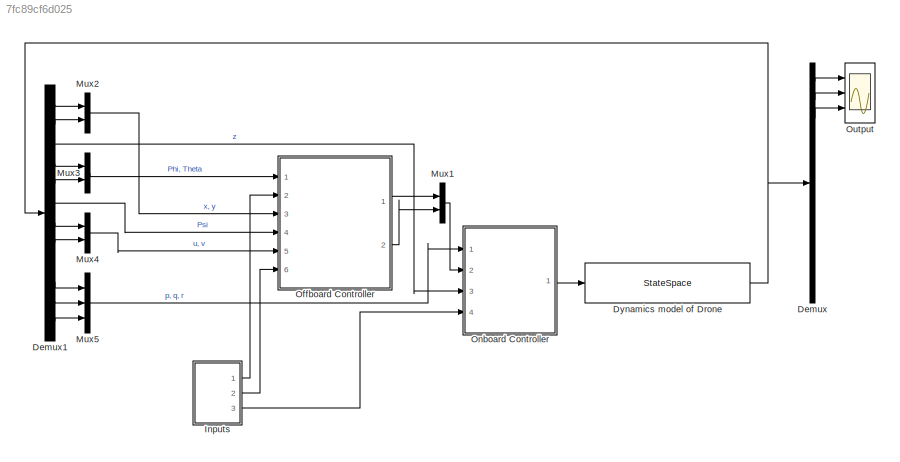
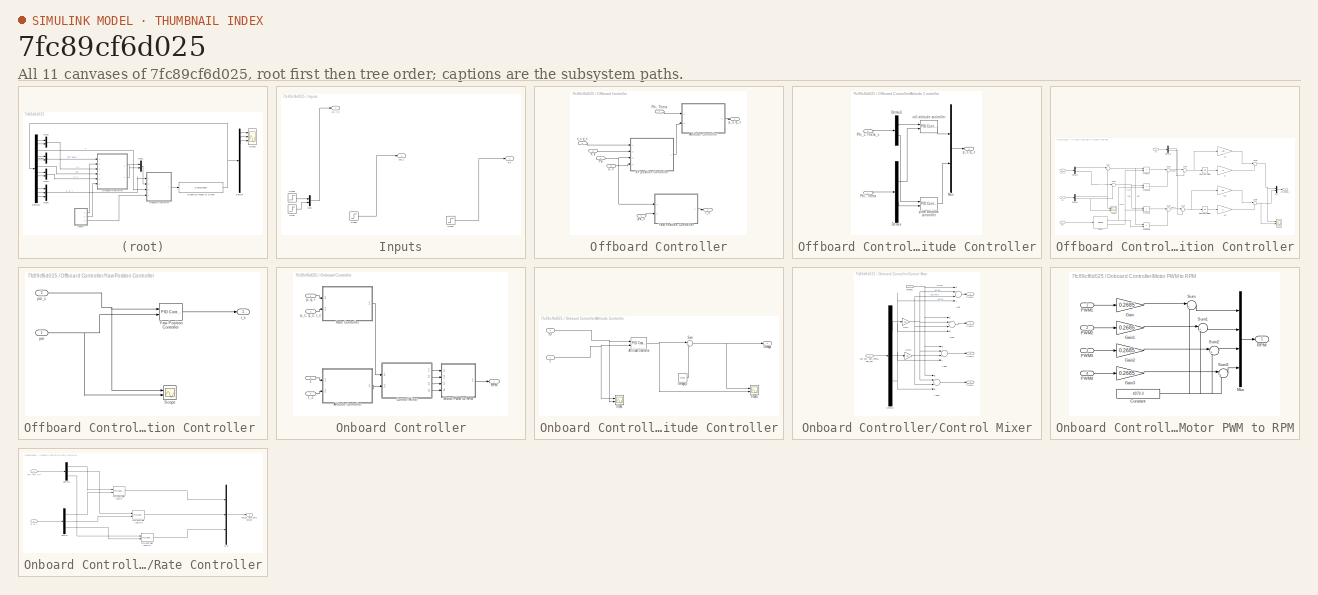
[diagram: thumbnail index - all 11 canvases of the model, root first then tree order]
MODEL slx_7fc89cf6d025
KIND model
CONFIG AbsTol = auto
CONFIG EnableMultiTasking = off
CONFIG FixedStep = 0.1
CONFIG MaxStep = auto
CONFIG MinStep = auto
CONFIG RelTol = auto
CONFIG SampleTimeConstraint = Unconstrained
CONFIG Solver = ode15s
CONFIG SolverName = ode15s
CONFIG StartTime = 0.0
CONFIG StopTime = 50
WORKSPACE source: MAT-file member
WORKSPACE A_matrix = [0 0 0 0 0 0 0 0 0 0 0 0 ... (144 elements, 12x12)]
BLOCK [Demux] Demux
  DisplayOption = bar
  Outputs = 12
  Ports = [1, 12]
BLOCK [Demux] Demux1
  DisplayOption = bar
  Outputs = 12
  Ports = [1, 12]
BLOCK [StateSpace] Dynamics model of Drone
  A = A
  B = B
  C = C
  ContinuousStateAttributes = 'X.Y.Z.Roll.PItch.Yaw.U.V.W.Roll_Rate.Pitch_Rate.Yaw_Rate'
  D = D
  InitialCondition = [0,0,0,0,0,0,0,0,0,0,0,0]
  Ports = [1, 1]
BLOCK [SubSystem] Inputs
  Ports = [0, 3]
  RequestExecContextInheritance = off
BLOCK [Mux] Inputs/Mux
  DisplayOption = bar
  Inputs = 2
  Ports = [2, 1]
BLOCK [Step] Inputs/Step
  After = 0.3
  SampleTime = 0
BLOCK [Step] Inputs/Step1
  After = 0.3
  SampleTime = 0
BLOCK [Step] Inputs/Step2
  After = 0.3
  SampleTime = 0
BLOCK [Step] Inputs/Step3
  After = 0
  SampleTime = 0
BLOCK [Outport] Inputs/psi_c
  IconDisplay = Port number
  Port = 2
BLOCK [Outport] Inputs/x_c, y_c
  IconDisplay = Port number
BLOCK [Outport] Inputs/z_c
  IconDisplay = Port number
  Port = 3
BLOCK [Mux] Mux1
  DisplayOption = bar
  Inputs = 2
  Ports = [2, 1]
BLOCK [Mux] Mux2
  DisplayOption = bar
  Inputs = 2
  Ports = [2, 1]
BLOCK [Mux] Mux3
  DisplayOption = bar
  Inputs = 2
  Ports = [2, 1]
BLOCK [Mux] Mux4
  DisplayOption = bar
  Inputs = 2
  Ports = [2, 1]
BLOCK [Mux] Mux5
  DisplayOption = bar
  Inputs = 3
  Ports = [3, 1]
BLOCK [SubSystem] Offboard Controller
  Ports = [6, 2]
  RequestExecContextInheritance = off
  ShowPortLabels = FromPortBlockName
BLOCK [SubSystem] Offboard Controller/Attitude Controller
  Ports = [2, 1]
  RequestExecContextInheritance = off
BLOCK [Demux] Offboard Controller/Attitude Controller/Demux
  DisplayOption = bar
  Outputs = 2
  Ports = [1, 2]
BLOCK [Demux] Offboard Controller/Attitude Controller/Demux1
  DisplayOption = bar
  Outputs = 2
  Ports = [1, 2]
BLOCK [Mux] Offboard Controller/Attitude Controller/Mux
  DisplayOption = bar
  Inputs = 2
  Ports = [2, 1]
BLOCK [Inport] Offboard Controller/Attitude Controller/Phi, Theta
  IconDisplay = Port number
BLOCK [Inport] Offboard Controller/Attitude Controller/Phi_c, Theta_c
  IconDisplay = Port number
  Port = 2
BLOCK [Outport] Offboard Controller/Attitude Controller/p_c, q_c
  IconDisplay = Port number
  VectorParamsAs1DForOutWhenUnconnected = off
BLOCK [Reference] Offboard Controller/Attitude Controller/pitch attitude controller  REF=simulink/Continuous/PID Controller (2DOF)
  Ports = [2, 1]
  SourceBlock = simulink/Continuous/PID Controller (2DOF)
  SourceProductBaseCode = SL
  SourceProductName = Simulink
  SourceType = PID 2dof
BLOCK [Reference] Offboard Controller/Attitude Controller/roll attitude controller  REF=simulink/Continuous/PID Controller (2DOF)
  Ports = [2, 1]
  SourceBlock = simulink/Continuous/PID Controller (2DOF)
  SourceProductBaseCode = SL
  SourceProductName = Simulink
  SourceType = PID 2dof
BLOCK [Inport] Offboard Controller/Phi, Theta
  IconDisplay = Port number
BLOCK [Inport] Offboard Controller/Psi
  IconDisplay = Port number
  Port = 4
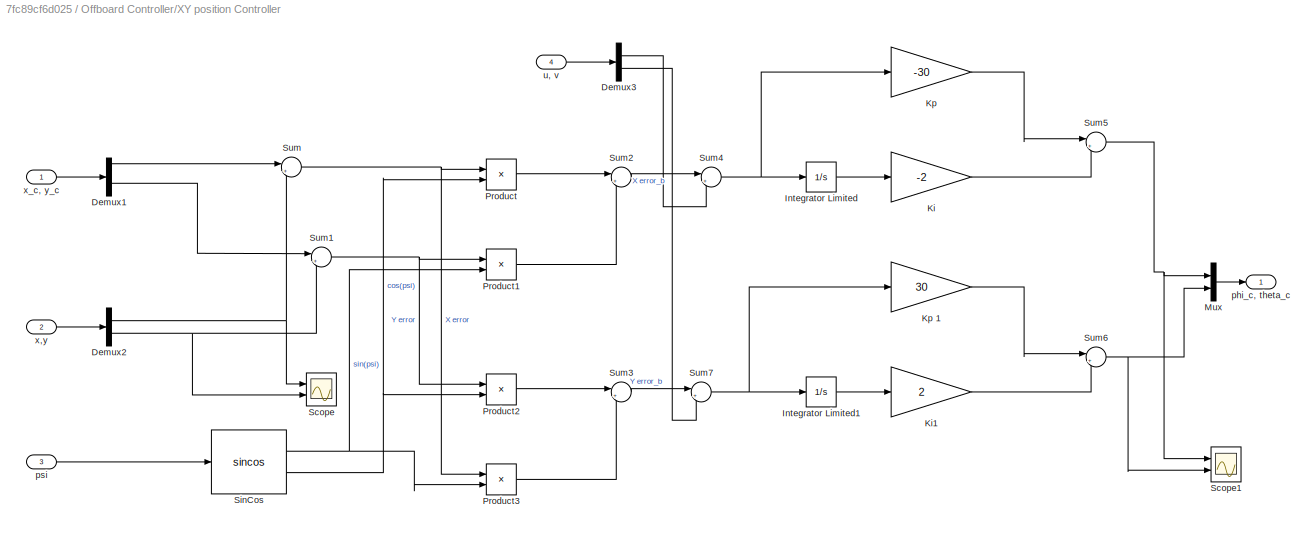
BLOCK [SubSystem] Offboard Controller/XY position Controller
  Ports = [4, 1]
  RequestExecContextInheritance = off
BLOCK [Demux] Offboard Controller/XY position Controller/Demux1
  DisplayOption = bar
  Outputs = 2
  Ports = [1, 2]
BLOCK [Demux] Offboard Controller/XY position Controller/Demux2
  DisplayOption = bar
  Outputs = 2
  Ports = [1, 2]
BLOCK [Demux] Offboard Controller/XY position Controller/Demux3
  DisplayOption = bar
  Outputs = 2
  Ports = [1, 2]
BLOCK [Integrator] Offboard Controller/XY position Controller/Integrator Limited
  LimitOutput = on
  LowerSaturationLimit = -pi/6
  Ports = [1, 1]
  UpperSaturationLimit = pi/6
BLOCK [Integrator] Offboard Controller/XY position Controller/Integrator Limited1
  LimitOutput = on
  LowerSaturationLimit = -pi/6
  Ports = [1, 1]
  UpperSaturationLimit = pi/6
BLOCK [Gain] Offboard Controller/XY position Controller/Ki
  Gain = -2
  OutDataTypeStr = Inherit: Inherit via internal rule
  ParamDataTypeStr = Inherit: Inherit via internal rule
  SaturateOnIntegerOverflow = off
BLOCK [Gain] Offboard Controller/XY position Controller/Ki1
  Gain = 2
  OutDataTypeStr = Inherit: Inherit via internal rule
  ParamDataTypeStr = Inherit: Inherit via internal rule
  SaturateOnIntegerOverflow = off
BLOCK [Gain] Offboard Controller/XY position Controller/Kp 
  Gain = -30
  OutDataTypeStr = Inherit: Inherit via internal rule
  ParamDataTypeStr = Inherit: Inherit via internal rule
  SaturateOnIntegerOverflow = off
BLOCK [Gain] Offboard Controller/XY position Controller/Kp 1
  Gain = 30
  OutDataTypeStr = Inherit: Inherit via internal rule
  ParamDataTypeStr = Inherit: Inherit via internal rule
  SaturateOnIntegerOverflow = off
BLOCK [Mux] Offboard Controller/XY position Controller/Mux
  DisplayOption = bar
  Inputs = 2
  Ports = [2, 1]
BLOCK [Product] Offboard Controller/XY position Controller/Product
  InputSameDT = off
  OutDataTypeStr = Inherit: Inherit via internal rule
  Ports = [2, 1]
  RndMeth = Floor
  SaturateOnIntegerOverflow = off
BLOCK [Product] Offboard Controller/XY position Controller/Product1
  InputSameDT = off
  OutDataTypeStr = Inherit: Inherit via internal rule
  Ports = [2, 1]
  RndMeth = Floor
  SaturateOnIntegerOverflow = off
BLOCK [Product] Offboard Controller/XY position Controller/Product2
  InputSameDT = off
  OutDataTypeStr = Inherit: Inherit via internal rule
  Ports = [2, 1]
  RndMeth = Floor
  SaturateOnIntegerOverflow = off
BLOCK [Product] Offboard Controller/XY position Controller/Product3
  InputSameDT = off
  OutDataTypeStr = Inherit: Inherit via internal rule
  Ports = [2, 1]
  RndMeth = Floor
  SaturateOnIntegerOverflow = off
BLOCK [Scope] Offboard Controller/XY position Controller/Scope
  Floating = off
  NumInputPorts = 2
  Ports = [2]
  ScopeSpecificationString = Simulink.scopes.TimeScopeBlockCfg('CurrentConfiguration', extmgr.ConfigurationSet(extmgr.Configuration('Core','General UI',true),extmgr.Configuration('Core','Source UI',true),extmgr.Configuration('Sources','WiredSimulink',true,'DataLoggingVariableName','ScopeData5'),extmgr.Configuration('Visuals','Time Domain',true,'SerializedDisplays',{struct('MinYLimReal','-15.81523','MaxYLimReal','6.20722','YLa...<+1697ch>
BLOCK [Scope] Offboard Controller/XY position Controller/Scope1
  Floating = off
  NumInputPorts = 2
  Ports = [2]
  ScopeSpecificationString = Simulink.scopes.TimeScopeBlockCfg('CurrentConfiguration', extmgr.ConfigurationSet(extmgr.Configuration('Core','General UI',true),extmgr.Configuration('Core','Source UI',true),extmgr.Configuration('Sources','WiredSimulink',true,'DataLoggingVariableName','ScopeData6'),extmgr.Configuration('Visuals','Time Domain',true,'SerializedDisplays',{struct('MinYLimReal','-32.77875','MaxYLimReal','5.72296','YLa...<+1689ch>
BLOCK [Trigonometry] Offboard Controller/XY position Controller/SinCos
  Operator = sincos
  Ports = [1, 2]
BLOCK [Sum] Offboard Controller/XY position Controller/Sum
  IconShape = round
  InputSameDT = off
  Inputs = |+-
  OutDataTypeStr = Inherit: Inherit via internal rule
  Ports = [2, 1]
  SaturateOnIntegerOverflow = off
BLOCK [Sum] Offboard Controller/XY position Controller/Sum1
  IconShape = round
  InputSameDT = off
  Inputs = |+-
  OutDataTypeStr = Inherit: Inherit via internal rule
  Ports = [2, 1]
  SaturateOnIntegerOverflow = off
BLOCK [Sum] Offboard Controller/XY position Controller/Sum2
  IconShape = round
  InputSameDT = off
  Inputs = |++
  OutDataTypeStr = Inherit: Inherit via internal rule
  Ports = [2, 1]
  SaturateOnIntegerOverflow = off
BLOCK [Sum] Offboard Controller/XY position Controller/Sum3
  IconShape = round
  InputSameDT = off
  Inputs = |+-
  OutDataTypeStr = Inherit: Inherit via internal rule
  Ports = [2, 1]
  SaturateOnIntegerOverflow = off
BLOCK [Sum] Offboard Controller/XY position Controller/Sum4
  IconShape = round
  InputSameDT = off
  Inputs = |+-
  OutDataTypeStr = Inherit: Inherit via internal rule
  Ports = [2, 1]
  SaturateOnIntegerOverflow = off
BLOCK [Sum] Offboard Controller/XY position Controller/Sum5
  IconShape = round
  InputSameDT = off
  Inputs = |++
  OutDataTypeStr = Inherit: Inherit via internal rule
  Ports = [2, 1]
  SaturateOnIntegerOverflow = off
BLOCK [Sum] Offboard Controller/XY position Controller/Sum6
  IconShape = round
  InputSameDT = off
  Inputs = |++
  OutDataTypeStr = Inherit: Inherit via internal rule
  Ports = [2, 1]
  SaturateOnIntegerOverflow = off
BLOCK [Sum] Offboard Controller/XY position Controller/Sum7
  IconShape = round
  InputSameDT = off
  Inputs = |+-
  OutDataTypeStr = Inherit: Inherit via internal rule
  Ports = [2, 1]
  SaturateOnIntegerOverflow = off
BLOCK [Outport] Offboard Controller/XY position Controller/phi_c, theta_c
  IconDisplay = Port number
  VectorParamsAs1DForOutWhenUnconnected = off
BLOCK [Inport] Offboard Controller/XY position Controller/psi
  IconDisplay = Port number
  Port = 3
BLOCK [Inport] Offboard Controller/XY position Controller/u, v
  IconDisplay = Port number
  Port = 4
BLOCK [Inport] Offboard Controller/XY position Controller/x,y
  IconDisplay = Port number
  Port = 2
BLOCK [Inport] Offboard Controller/XY position Controller/x_c, y_c
  IconDisplay = Port number
BLOCK [SubSystem] Offboard Controller/Yaw Position Controller 
  Ports = [2, 1]
  RequestExecContextInheritance = off
BLOCK [Scope] Offboard Controller/Yaw Position Controller /Scope
  Floating = off
  NumInputPorts = 2
  Ports = [2]
  ScopeSpecificationString = Simulink.scopes.TimeScopeBlockCfg('CurrentConfiguration', extmgr.ConfigurationSet(extmgr.Configuration('Core','General UI',true),extmgr.Configuration('Core','Source UI',true),extmgr.Configuration('Sources','WiredSimulink',true,'DataLoggingVariableName','ScopeData1'),extmgr.Configuration('Visuals','Time Domain',true,'SerializedDisplays',{struct('MinYLimReal','-1.00000','MaxYLimReal','1.00000','YLab...<+1424ch>
BLOCK [Reference] Offboard Controller/Yaw Position Controller /Yaw Position Controller  REF=simulink/Continuous/PID Controller (2DOF)
  Ports = [2, 1]
  SourceBlock = simulink/Continuous/PID Controller (2DOF)
  SourceProductBaseCode = SL
  SourceProductName = Simulink
  SourceType = PID 2dof
BLOCK [Inport] Offboard Controller/Yaw Position Controller /psi
  IconDisplay = Port number
BLOCK [Inport] Offboard Controller/Yaw Position Controller /psi_c
  IconDisplay = Port number
  Port = 2
BLOCK [Outport] Offboard Controller/Yaw Position Controller /r_c
  IconDisplay = Port number
  VectorParamsAs1DForOutWhenUnconnected = off
BLOCK [Outport] Offboard Controller/p_c, q_c
  IconDisplay = Port number
BLOCK [Inport] Offboard Controller/psi_c
  IconDisplay = Port number
  Port = 6
BLOCK [Outport] Offboard Controller/r_c
  IconDisplay = Port number
  Port = 2
BLOCK [Inport] Offboard Controller/u, v 
  IconDisplay = Port number
  Port = 5
BLOCK [Inport] Offboard Controller/x, y 
  IconDisplay = Port number
  Port = 3
BLOCK [Inport] Offboard Controller/x_c, y_c
  IconDisplay = Port number
  Port = 2
BLOCK [SubSystem] Onboard Controller
  Ports = [4, 1]
  RequestExecContextInheritance = off
BLOCK [SubSystem] Onboard Controller/Altitude Controller
  Ports = [2, 1]
  RequestExecContextInheritance = off
BLOCK [Reference] Onboard Controller/Altitude Controller/Altitude Controller  REF=simulink/Continuous/PID Controller (2DOF)
  Ports = [2, 1]
  SourceBlock = simulink/Continuous/PID Controller (2DOF)
  SourceProductBaseCode = SL
  SourceProductName = Simulink
  SourceType = PID 2dof
BLOCK [Outport] Onboard Controller/Altitude Controller/Omega
  IconDisplay = Port number
  VectorParamsAs1DForOutWhenUnconnected = off
BLOCK [Constant] Onboard Controller/Altitude Controller/Omega_e
  Value = 44705
BLOCK [Scope] Onboard Controller/Altitude Controller/Scope
  Floating = off
  NumInputPorts = 2
  Ports = [2]
  ScopeSpecificationString = Simulink.scopes.TimeScopeBlockCfg('CurrentConfiguration', extmgr.ConfigurationSet(extmgr.Configuration('Core','General UI',true),extmgr.Configuration('Core','Source UI',true),extmgr.Configuration('Sources','WiredSimulink',true,'DataLoggingVariableName','ScopeData2'),extmgr.Configuration('Visuals','Time Domain',true,'SerializedDisplays',{struct('MinYLimReal','-151.30448','MaxYLimReal','1361.7403','...<+1380ch>
BLOCK [Scope] Onboard Controller/Altitude Controller/Scope1
  Floating = off
  NumInputPorts = 2
  Ports = [2]
  ScopeSpecificationString = Simulink.scopes.TimeScopeBlockCfg('CurrentConfiguration', extmgr.ConfigurationSet(extmgr.Configuration('Core','General UI',true),extmgr.Configuration('Core','Source UI',true),extmgr.Configuration('Sources','WiredSimulink',true,'DataLoggingVariableName','ScopeData3'),extmgr.Configuration('Visuals','Time Domain',true),extmgr.Configuration('Tools','Plot Navigation',true),extmgr.Configuration('Tools',...<+58ch>
BLOCK [Sum] Onboard Controller/Altitude Controller/Sum
  IconShape = round
  InputSameDT = off
  Inputs = |++
  OutDataTypeStr = Inherit: Inherit via internal rule
  Ports = [2, 1]
  SaturateOnIntegerOverflow = off
BLOCK [Inport] Onboard Controller/Altitude Controller/z
  IconDisplay = Port number
BLOCK [Inport] Onboard Controller/Altitude Controller/z_c
  IconDisplay = Port number
  Port = 2
BLOCK [SubSystem] Onboard Controller/Control Mixer
  Ports = [2, 4]
  RequestExecContextInheritance = off
BLOCK [Sum] Onboard Controller/Control Mixer/Add
  InputSameDT = off
  Inputs = +---
  OutDataTypeStr = Inherit: Inherit via internal rule
  Ports = [4, 1]
  SaturateOnIntegerOverflow = off
BLOCK [Sum] Onboard Controller/Control Mixer/Add4
  InputSameDT = off
  Inputs = ++-+
  OutDataTypeStr = Inherit: Inherit via internal rule
  Ports = [4, 1]
  SaturateOnIntegerOverflow = off
BLOCK [Sum] Onboard Controller/Control Mixer/Add5
  InputSameDT = off
  Inputs = +++-
  OutDataTypeStr = Inherit: Inherit via internal rule
  Ports = [4, 1]
  SaturateOnIntegerOverflow = off
BLOCK [Sum] Onboard Controller/Control Mixer/Add6
  InputSameDT = off
  Inputs = +--+
  OutDataTypeStr = Inherit: Inherit via internal rule
  Ports = [4, 1]
  SaturateOnIntegerOverflow = off
BLOCK [Demux] Onboard Controller/Control Mixer/Demux
  DisplayOption = bar
  Outputs = 3
  Ports = [1, 3]
BLOCK [Gain] Onboard Controller/Control Mixer/Gain
  Gain = 0.5
  OutDataTypeStr = Inherit: Inherit via internal rule
  ParamDataTypeStr = Inherit: Inherit via internal rule
  SaturateOnIntegerOverflow = off
BLOCK [Gain] Onboard Controller/Control Mixer/Gain1
  Gain = 0.5
  OutDataTypeStr = Inherit: Inherit via internal rule
  ParamDataTypeStr = Inherit: Inherit via internal rule
  SaturateOnIntegerOverflow = off
BLOCK [Outport] Onboard Controller/Control Mixer/PWM1 
  IconDisplay = Port number
  VectorParamsAs1DForOutWhenUnconnected = off
BLOCK [Outport] Onboard Controller/Control Mixer/PWM2 
  IconDisplay = Port number
  Port = 2
  VectorParamsAs1DForOutWhenUnconnected = off
BLOCK [Outport] Onboard Controller/Control Mixer/PWM3
  IconDisplay = Port number
  Port = 3
  VectorParamsAs1DForOutWhenUnconnected = off
BLOCK [Outport] Onboard Controller/Control Mixer/PWM4 
  IconDisplay = Port number
  Port = 4
  VectorParamsAs1DForOutWhenUnconnected = off
BLOCK [Inport] Onboard Controller/Control Mixer/del_phi, del_theta, del_psi
  IconDisplay = Port number
BLOCK [Inport] Onboard Controller/Control Mixer/omega 
  IconDisplay = Port number
  Port = 2
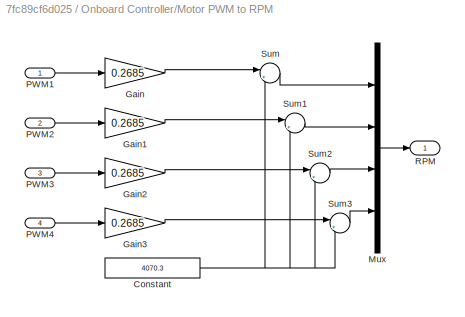
BLOCK [SubSystem] Onboard Controller/Motor PWM to RPM
  Ports = [4, 1]
  RequestExecContextInheritance = off
BLOCK [Constant] Onboard Controller/Motor PWM to RPM/Constant
  Value = 4070.3
BLOCK [Gain] Onboard Controller/Motor PWM to RPM/Gain
  Gain = 0.2685
  OutDataTypeStr = Inherit: Inherit via internal rule
  ParamDataTypeStr = Inherit: Inherit via internal rule
  SaturateOnIntegerOverflow = off
BLOCK [Gain] Onboard Controller/Motor PWM to RPM/Gain1
  Gain = 0.2685
  OutDataTypeStr = Inherit: Inherit via internal rule
  ParamDataTypeStr = Inherit: Inherit via internal rule
  SaturateOnIntegerOverflow = off
BLOCK [Gain] Onboard Controller/Motor PWM to RPM/Gain2
  Gain = 0.2685
  OutDataTypeStr = Inherit: Inherit via internal rule
  ParamDataTypeStr = Inherit: Inherit via internal rule
  SaturateOnIntegerOverflow = off
BLOCK [Gain] Onboard Controller/Motor PWM to RPM/Gain3
  Gain = 0.2685
  OutDataTypeStr = Inherit: Inherit via internal rule
  ParamDataTypeStr = Inherit: Inherit via internal rule
  SaturateOnIntegerOverflow = off
BLOCK [Mux] Onboard Controller/Motor PWM to RPM/Mux
  DisplayOption = bar
  Ports = [4, 1]
BLOCK [Inport] Onboard Controller/Motor PWM to RPM/PWM1
  IconDisplay = Port number
BLOCK [Inport] Onboard Controller/Motor PWM to RPM/PWM2
  IconDisplay = Port number
  Port = 2
BLOCK [Inport] Onboard Controller/Motor PWM to RPM/PWM3
  IconDisplay = Port number
  Port = 3
BLOCK [Inport] Onboard Controller/Motor PWM to RPM/PWM4 
  IconDisplay = Port number
  Port = 4
BLOCK [Outport] Onboard Controller/Motor PWM to RPM/RPM 
  IconDisplay = Port number
BLOCK [Sum] Onboard Controller/Motor PWM to RPM/Sum
  IconShape = round
  InputSameDT = off
  Inputs = |++
  OutDataTypeStr = Inherit: Inherit via internal rule
  Ports = [2, 1]
  SaturateOnIntegerOverflow = off
BLOCK [Sum] Onboard Controller/Motor PWM to RPM/Sum1
  IconShape = round
  InputSameDT = off
  Inputs = |++
  OutDataTypeStr = Inherit: Inherit via internal rule
  Ports = [2, 1]
  SaturateOnIntegerOverflow = off
BLOCK [Sum] Onboard Controller/Motor PWM to RPM/Sum2
  IconShape = round
  InputSameDT = off
  Inputs = |++
  OutDataTypeStr = Inherit: Inherit via internal rule
  Ports = [2, 1]
  SaturateOnIntegerOverflow = off
BLOCK [Sum] Onboard Controller/Motor PWM to RPM/Sum3
  IconShape = round
  InputSameDT = off
  Inputs = |++
  OutDataTypeStr = Inherit: Inherit via internal rule
  Ports = [2, 1]
  SaturateOnIntegerOverflow = off
BLOCK [Outport] Onboard Controller/RPM
  IconDisplay = Port number
BLOCK [SubSystem] Onboard Controller/Rate Controller
  Ports = [2, 1]
  RequestExecContextInheritance = off
BLOCK [Demux] Onboard Controller/Rate Controller/Demux
  DisplayOption = bar
  Outputs = 3
  Ports = [1, 3]
BLOCK [Demux] Onboard Controller/Rate Controller/Demux1
  DisplayOption = bar
  Outputs = 3
  Ports = [1, 3]
BLOCK [Mux] Onboard Controller/Rate Controller/Mux
  DisplayOption = bar
  Inputs = 3
  Ports = [3, 1]
BLOCK [Reference] Onboard Controller/Rate Controller/PID Controller (2DOF)  REF=simulink/Continuous/PID Controller (2DOF)
  Ports = [2, 1]
  SourceBlock = simulink/Continuous/PID Controller (2DOF)
  SourceProductBaseCode = SL
  SourceProductName = Simulink
  SourceType = PID 2dof
BLOCK [Reference] Onboard Controller/Rate Controller/PID Controller (2DOF)3  REF=simulink/Continuous/PID Controller (2DOF)
  Ports = [2, 1]
  SourceBlock = simulink/Continuous/PID Controller (2DOF)
  SourceProductBaseCode = SL
  SourceProductName = Simulink
  SourceType = PID 2dof
BLOCK [Reference] Onboard Controller/Rate Controller/PID Controller (2DOF)4  REF=simulink/Continuous/PID Controller (2DOF)
  Ports = [2, 1]
  SourceBlock = simulink/Continuous/PID Controller (2DOF)
  SourceProductBaseCode = SL
  SourceProductName = Simulink
  SourceType = PID 2dof
BLOCK [Outport] Onboard Controller/Rate Controller/del_phi, del_theta, del_psi
  IconDisplay = Port number
  VectorParamsAs1DForOutWhenUnconnected = off
BLOCK [Inport] Onboard Controller/Rate Controller/p, q, r
  IconDisplay = Port number
BLOCK [Inport] Onboard Controller/Rate Controller/p_c, q_c, r_c
  IconDisplay = Port number
  Port = 2
BLOCK [Inport] Onboard Controller/p, q, r
  IconDisplay = Port number
BLOCK [Inport] Onboard Controller/p_c, q_c, r_c
  IconDisplay = Port number
  Port = 2
BLOCK [Inport] Onboard Controller/z
  IconDisplay = Port number
  Port = 3
BLOCK [Inport] Onboard Controller/z_c
  IconDisplay = Port number
  Port = 4
BLOCK [Scope] Output
  Floating = off
  NumInputPorts = 3
  Ports = [3]
  ScopeSpecificationString = Simulink.scopes.TimeScopeBlockCfg('CurrentConfiguration', extmgr.ConfigurationSet(extmgr.Configuration('Core','General UI',true),extmgr.Configuration('Core','Source UI',true),extmgr.Configuration('Sources','WiredSimulink',true),extmgr.Configuration('Visuals','Time Domain',true,'SerializedDisplays',{struct('MinYLimReal','-445.14897','MaxYLimReal','964.87236','YLabelReal','','MinYLimMag',' 0.00000',...<+1676ch>
LINE Demux1:1 -> Mux2:1
LINE Demux1:10 -> Mux5:1
LINE Demux1:11 -> Mux5:2
LINE Demux1:12 -> Mux5:3
LINE Demux1:2 -> Mux2:2
LINE Demux1:3 -> Onboard Controller:3
LINE Demux1:4 -> Mux3:1
LINE Demux1:5 -> Mux3:2
LINE Demux1:6 -> Offboard Controller:4
LINE Demux1:7 -> Mux4:1
LINE Demux1:8 -> Mux4:2
LINE Demux:1 -> Output:1
LINE Demux:2 -> Output:2
LINE Demux:3 -> Output:3
NET Dynamics model of Drone:1 -> Demux1:1, Demux:1
LINE Inputs/Mux:1 -> Inputs/x_c, y_c:1
LINE Inputs/Step1:1 -> Inputs/Mux:1
LINE Inputs/Step2:1 -> Inputs/z_c:1
LINE Inputs/Step3:1 -> Inputs/psi_c:1
LINE Inputs/Step:1 -> Inputs/Mux:2
LINE Inputs:1 -> Offboard Controller:2
LINE Inputs:2 -> Offboard Controller:6
LINE Inputs:3 -> Onboard Controller:4
LINE Mux1:1 -> Onboard Controller:2
LINE Mux2:1 -> Offboard Controller:3
LINE Mux3:1 -> Offboard Controller:1
LINE Mux4:1 -> Offboard Controller:5
LINE Mux5:1 -> Onboard Controller:1
LINE Offboard Controller/Attitude Controller/Demux1:1 -> Offboard Controller/Attitude Controller/roll attitude controller:1
LINE Offboard Controller/Attitude Controller/Demux1:2 -> Offboard Controller/Attitude Controller/pitch attitude controller:1
LINE Offboard Controller/Attitude Controller/Demux:1 -> Offboard Controller/Attitude Controller/roll attitude controller:2
LINE Offboard Controller/Attitude Controller/Demux:2 -> Offboard Controller/Attitude Controller/pitch attitude controller:2
LINE Offboard Controller/Attitude Controller/Mux:1 -> Offboard Controller/Attitude Controller/p_c, q_c:1
LINE Offboard Controller/Attitude Controller/Phi, Theta:1 -> Offboard Controller/Attitude Controller/Demux:1
LINE Offboard Controller/Attitude Controller/Phi_c, Theta_c:1 -> Offboard Controller/Attitude Controller/Demux1:1
LINE Offboard Controller/Attitude Controller/pitch attitude controller:1 -> Offboard Controller/Attitude Controller/Mux:2
LINE Offboard Controller/Attitude Controller/roll attitude controller:1 -> Offboard Controller/Attitude Controller/Mux:1
LINE Offboard Controller/Attitude Controller:1 -> Offboard Controller/p_c, q_c:1
LINE Offboard Controller/Phi, Theta:1 -> Offboard Controller/Attitude Controller:1
NET Offboard Controller/Psi:1 -> Offboard Controller/XY position Controller:3, Offboard Controller/Yaw Position Controller :1
LINE Offboard Controller/XY position Controller/Demux1:1 -> Offboard Controller/XY position Controller/Sum:1
LINE Offboard Controller/XY position Controller/Demux1:2 -> Offboard Controller/XY position Controller/Sum1:1
NET Offboard Controller/XY position Controller/Demux2:1 -> Offboard Controller/XY position Controller/Scope:1, Offboard Controller/XY position Controller/Sum:2
NET Offboard Controller/XY position Controller/Demux2:2 -> Offboard Controller/XY position Controller/Scope:2, Offboard Controller/XY position Controller/Sum1:2
LINE Offboard Controller/XY position Controller/Demux3:1 -> Offboard Controller/XY position Controller/Sum4:2
LINE Offboard Controller/XY position Controller/Demux3:2 -> Offboard Controller/XY position Controller/Sum7:2
LINE Offboard Controller/XY position Controller/Integrator Limited1:1 -> Offboard Controller/XY position Controller/Ki1:1
LINE Offboard Controller/XY position Controller/Integrator Limited:1 -> Offboard Controller/XY position Controller/Ki:1
LINE Offboard Controller/XY position Controller/Ki1:1 -> Offboard Controller/XY position Controller/Sum6:2
LINE Offboard Controller/XY position Controller/Ki:1 -> Offboard Controller/XY position Controller/Sum5:2
LINE Offboard Controller/XY position Controller/Kp 1:1 -> Offboard Controller/XY position Controller/Sum6:1
LINE Offboard Controller/XY position Controller/Kp :1 -> Offboard Controller/XY position Controller/Sum5:1
LINE Offboard Controller/XY position Controller/Mux:1 -> Offboard Controller/XY position Controller/phi_c, theta_c:1
LINE Offboard Controller/XY position Controller/Product1:1 -> Offboard Controller/XY position Controller/Sum2:2
LINE Offboard Controller/XY position Controller/Product2:1 -> Offboard Controller/XY position Controller/Sum3:1
LINE Offboard Controller/XY position Controller/Product3:1 -> Offboard Controller/XY position Controller/Sum3:2
LINE Offboard Controller/XY position Controller/Product:1 -> Offboard Controller/XY position Controller/Sum2:1
NET Offboard Controller/XY position Controller/SinCos:1 -> Offboard Controller/XY position Controller/Product1:2, Offboard Controller/XY position Controller/Product3:2
NET Offboard Controller/XY position Controller/SinCos:2 -> Offboard Controller/XY position Controller/Product2:2, Offboard Controller/XY position Controller/Product:2
NET Offboard Controller/XY position Controller/Sum1:1 -> Offboard Controller/XY position Controller/Product1:1, Offboard Controller/XY position Controller/Product2:1
LINE Offboard Controller/XY position Controller/Sum2:1 -> Offboard Controller/XY position Controller/Sum4:1
LINE Offboard Controller/XY position Controller/Sum3:1 -> Offboard Controller/XY position Controller/Sum7:1
NET Offboard Controller/XY position Controller/Sum4:1 -> Offboard Controller/XY position Controller/Integrator Limited:1, Offboard Controller/XY position Controller/Kp :1
NET Offboard Controller/XY position Controller/Sum5:1 -> Offboard Controller/XY position Controller/Mux:1, Offboard Controller/XY position Controller/Scope1:1
NET Offboard Controller/XY position Controller/Sum6:1 -> Offboard Controller/XY position Controller/Mux:2, Offboard Controller/XY position Controller/Scope1:2
NET Offboard Controller/XY position Controller/Sum7:1 -> Offboard Controller/XY position Controller/Integrator Limited1:1, Offboard Controller/XY position Controller/Kp 1:1
NET Offboard Controller/XY position Controller/Sum:1 -> Offboard Controller/XY position Controller/Product3:1, Offboard Controller/XY position Controller/Product:1
LINE Offboard Controller/XY position Controller/psi:1 -> Offboard Controller/XY position Controller/SinCos:1
LINE Offboard Controller/XY position Controller/u, v:1 -> Offboard Controller/XY position Controller/Demux3:1
LINE Offboard Controller/XY position Controller/x,y:1 -> Offboard Controller/XY position Controller/Demux2:1
LINE Offboard Controller/XY position Controller/x_c, y_c:1 -> Offboard Controller/XY position Controller/Demux1:1
LINE Offboard Controller/XY position Controller:1 -> Offboard Controller/Attitude Controller:2
LINE Offboard Controller/Yaw Position Controller /Yaw Position Controller:1 -> Offboard Controller/Yaw Position Controller /r_c:1
NET Offboard Controller/Yaw Position Controller /psi:1 -> Offboard Controller/Yaw Position Controller /Scope:2, Offboard Controller/Yaw Position Controller /Yaw Position Controller:2
NET Offboard Controller/Yaw Position Controller /psi_c:1 -> Offboard Controller/Yaw Position Controller /Scope:1, Offboard Controller/Yaw Position Controller /Yaw Position Controller:1
LINE Offboard Controller/Yaw Position Controller :1 -> Offboard Controller/r_c:1
LINE Offboard Controller/psi_c:1 -> Offboard Controller/Yaw Position Controller :2
LINE Offboard Controller/u, v :1 -> Offboard Controller/XY position Controller:4
LINE Offboard Controller/x, y :1 -> Offboard Controller/XY position Controller:2
LINE Offboard Controller/x_c, y_c:1 -> Offboard Controller/XY position Controller:1
LINE Offboard Controller:1 -> Mux1:1
LINE Offboard Controller:2 -> Mux1:2
NET Onboard Controller/Altitude Controller/Altitude Controller:1 -> Onboard Controller/Altitude Controller/Scope1:2, Onboard Controller/Altitude Controller/Sum:1
LINE Onboard Controller/Altitude Controller/Omega_e:1 -> Onboard Controller/Altitude Controller/Sum:2
NET Onboard Controller/Altitude Controller/Sum:1 -> Onboard Controller/Altitude Controller/Omega:1, Onboard Controller/Altitude Controller/Scope1:1
NET Onboard Controller/Altitude Controller/z:1 -> Onboard Controller/Altitude Controller/Altitude Controller:2, Onboard Controller/Altitude Controller/Scope:1
NET Onboard Controller/Altitude Controller/z_c:1 -> Onboard Controller/Altitude Controller/Altitude Controller:1, Onboard Controller/Altitude Controller/Scope:2
LINE Onboard Controller/Altitude Controller:1 -> Onboard Controller/Control Mixer:2
LINE Onboard Controller/Control Mixer/Add4:1 -> Onboard Controller/Control Mixer/PWM2 :1
LINE Onboard Controller/Control Mixer/Add5:1 -> Onboard Controller/Control Mixer/PWM3:1
LINE Onboard Controller/Control Mixer/Add6:1 -> Onboard Controller/Control Mixer/PWM4 :1
LINE Onboard Controller/Control Mixer/Add:1 -> Onboard Controller/Control Mixer/PWM1 :1
LINE Onboard Controller/Control Mixer/Demux:1 -> Onboard Controller/Control Mixer/Gain:1
LINE Onboard Controller/Control Mixer/Demux:2 -> Onboard Controller/Control Mixer/Gain1:1
NET Onboard Controller/Control Mixer/Demux:3 -> Onboard Controller/Control Mixer/Add4:4, Onboard Controller/Control Mixer/Add5:4, Onboard Controller/Control Mixer/Add6:4, Onboard Controller/Control Mixer/Add:4
NET Onboard Controller/Control Mixer/Gain1:1 -> Onboard Controller/Control Mixer/Add4:3, Onboard Controller/Control Mixer/Add5:3, Onboard Controller/Control Mixer/Add6:3, Onboard Controller/Control Mixer/Add:3
NET Onboard Controller/Control Mixer/Gain:1 -> Onboard Controller/Control Mixer/Add4:2, Onboard Controller/Control Mixer/Add5:2, Onboard Controller/Control Mixer/Add6:2, Onboard Controller/Control Mixer/Add:2
LINE Onboard Controller/Control Mixer/del_phi, del_theta, del_psi:1 -> Onboard Controller/Control Mixer/Demux:1
NET Onboard Controller/Control Mixer/omega :1 -> Onboard Controller/Control Mixer/Add4:1, Onboard Controller/Control Mixer/Add5:1, Onboard Controller/Control Mixer/Add6:1, Onboard Controller/Control Mixer/Add:1
LINE Onboard Controller/Control Mixer:1 -> Onboard Controller/Motor PWM to RPM:1
LINE Onboard Controller/Control Mixer:2 -> Onboard Controller/Motor PWM to RPM:2
LINE Onboard Controller/Control Mixer:3 -> Onboard Controller/Motor PWM to RPM:3
LINE Onboard Controller/Control Mixer:4 -> Onboard Controller/Motor PWM to RPM:4
NET Onboard Controller/Motor PWM to RPM/Constant:1 -> Onboard Controller/Motor PWM to RPM/Sum1:2, Onboard Controller/Motor PWM to RPM/Sum2:2, Onboard Controller/Motor PWM to RPM/Sum3:2, Onboard Controller/Motor PWM to RPM/Sum:2
LINE Onboard Controller/Motor PWM to RPM/Gain1:1 -> Onboard Controller/Motor PWM to RPM/Sum1:1
LINE Onboard Controller/Motor PWM to RPM/Gain2:1 -> Onboard Controller/Motor PWM to RPM/Sum2:1
LINE Onboard Controller/Motor PWM to RPM/Gain3:1 -> Onboard Controller/Motor PWM to RPM/Sum3:1
LINE Onboard Controller/Motor PWM to RPM/Gain:1 -> Onboard Controller/Motor PWM to RPM/Sum:1
LINE Onboard Controller/Motor PWM to RPM/Mux:1 -> Onboard Controller/Motor PWM to RPM/RPM :1
LINE Onboard Controller/Motor PWM to RPM/PWM1:1 -> Onboard Controller/Motor PWM to RPM/Gain:1
LINE Onboard Controller/Motor PWM to RPM/PWM2:1 -> Onboard Controller/Motor PWM to RPM/Gain1:1
LINE Onboard Controller/Motor PWM to RPM/PWM3:1 -> Onboard Controller/Motor PWM to RPM/Gain2:1
LINE Onboard Controller/Motor PWM to RPM/PWM4 :1 -> Onboard Controller/Motor PWM to RPM/Gain3:1
LINE Onboard Controller/Motor PWM to RPM/Sum1:1 -> Onboard Controller/Motor PWM to RPM/Mux:2
LINE Onboard Controller/Motor PWM to RPM/Sum2:1 -> Onboard Controller/Motor PWM to RPM/Mux:3
LINE Onboard Controller/Motor PWM to RPM/Sum3:1 -> Onboard Controller/Motor PWM to RPM/Mux:4
LINE Onboard Controller/Motor PWM to RPM/Sum:1 -> Onboard Controller/Motor PWM to RPM/Mux:1
LINE Onboard Controller/Motor PWM to RPM:1 -> Onboard Controller/RPM:1
LINE Onboard Controller/Rate Controller/Demux1:1 -> Onboard Controller/Rate Controller/PID Controller (2DOF):1
LINE Onboard Controller/Rate Controller/Demux1:2 -> Onboard Controller/Rate Controller/PID Controller (2DOF)3:1
LINE Onboard Controller/Rate Controller/Demux1:3 -> Onboard Controller/Rate Controller/PID Controller (2DOF)4:1
LINE Onboard Controller/Rate Controller/Demux:1 -> Onboard Controller/Rate Controller/PID Controller (2DOF):2
LINE Onboard Controller/Rate Controller/Demux:2 -> Onboard Controller/Rate Controller/PID Controller (2DOF)3:2
LINE Onboard Controller/Rate Controller/Demux:3 -> Onboard Controller/Rate Controller/PID Controller (2DOF)4:2
LINE Onboard Controller/Rate Controller/Mux:1 -> Onboard Controller/Rate Controller/del_phi, del_theta, del_psi:1
LINE Onboard Controller/Rate Controller/PID Controller (2DOF)3:1 -> Onboard Controller/Rate Controller/Mux:2
LINE Onboard Controller/Rate Controller/PID Controller (2DOF)4:1 -> Onboard Controller/Rate Controller/Mux:3
LINE Onboard Controller/Rate Controller/PID Controller (2DOF):1 -> Onboard Controller/Rate Controller/Mux:1
LINE Onboard Controller/Rate Controller/p, q, r:1 -> Onboard Controller/Rate Controller/Demux:1
LINE Onboard Controller/Rate Controller/p_c, q_c, r_c:1 -> Onboard Controller/Rate Controller/Demux1:1
LINE Onboard Controller/Rate Controller:1 -> Onboard Controller/Control Mixer:1
LINE Onboard Controller/p, q, r:1 -> Onboard Controller/Rate Controller:1
LINE Onboard Controller/p_c, q_c, r_c:1 -> Onboard Controller/Rate Controller:2
LINE Onboard Controller/z:1 -> Onboard Controller/Altitude Controller:1
LINE Onboard Controller/z_c:1 -> Onboard Controller/Altitude Controller:2
LINE Onboard Controller:1 -> Dynamics model of Drone:1
note: NET lines group one-source signal fan-out (src -> all destinations, sorted); 1:1 wires keep LINE
